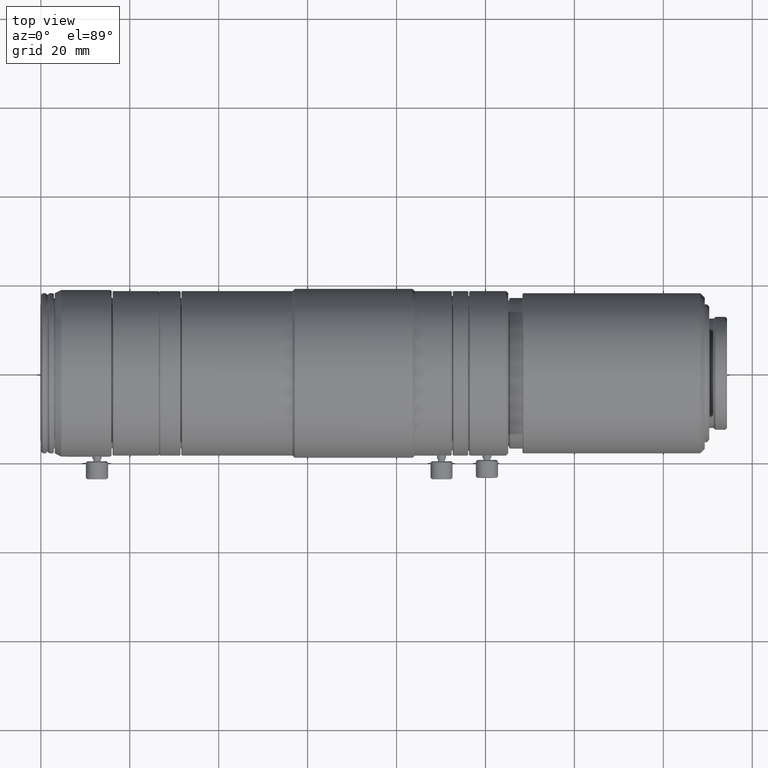
[diagram: clean part render]
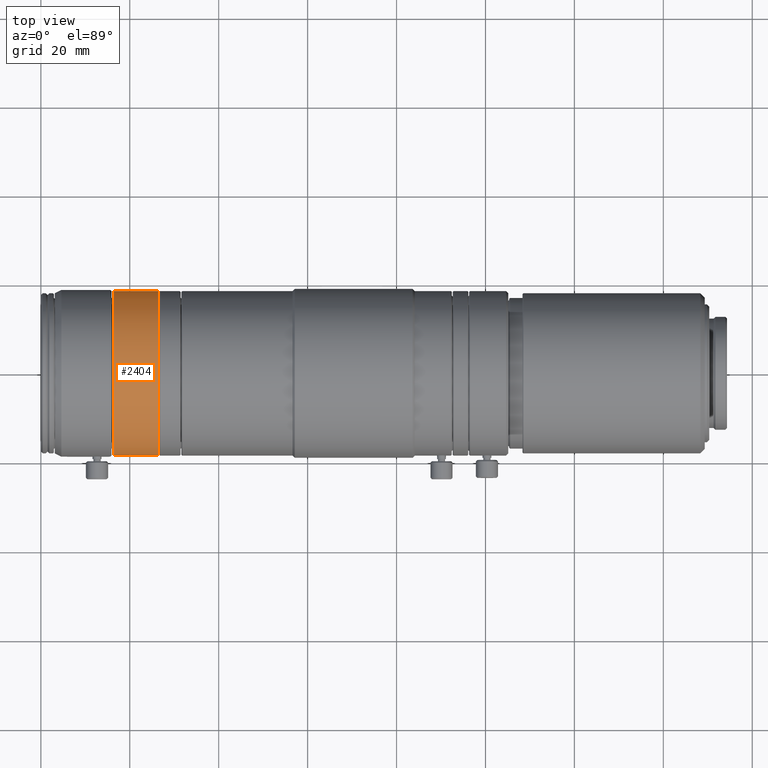
[diagram: same view with one face highlighted and labeled with its STEP entity id]
A machine part, top view. The second image highlights one B-rep face of the part: STEP entity #2404.
In plain terms, the highlighted cylindrical surface (partial cylindrical patch) has radius 18.5 mm, axis along (-1, -0, -0).
Its self-contained STEP definition (entity closure, byte-faithful):
#300 = CARTESIAN_POINT ( 'NONE',  ( 16.33152598471084700, 18.50000000000013900, 2.265596578422615200E-015 ) ) ;
#519 = ORIENTED_EDGE ( 'NONE', *, *, #3311, .F. ) ;
#537 = CYLINDRICAL_SURFACE ( 'NONE', #692, 18.50000000000008500 ) ;
#630 = LINE ( 'NONE', #2325, #6427 ) ;
#684 = EDGE_CURVE ( 'NONE', #4138, #1871, #6795, .T. ) ;
#692 = AXIS2_PLACEMENT_3D ( 'NONE', #6818, #4911, #1008 ) ;
#1008 = DIRECTION ( 'NONE',  ( 4.594672990425035500E-015, -1.000000000000000000, 0.0000000000000000000 ) ) ;
#1021 = EDGE_CURVE ( 'NONE', #3057, #4138, #4693, .T. ) ;
#1223 = DIRECTION ( 'NONE',  ( -1.000000000000000000, -4.558507189758049000E-015, -0.0000000000000000000 ) ) ;
#1329 = VERTEX_POINT ( 'NONE', #3041 ) ;
#1692 = EDGE_LOOP ( 'NONE', ( #2394, #6956, #4415, #519 ) ) ;
#1871 = VERTEX_POINT ( 'NONE', #300 ) ;
#2235 = CARTESIAN_POINT ( 'NONE',  ( 26.43097463334740400, -18.49999999999998600, 0.0000000000000000000 ) ) ;
#2325 = CARTESIAN_POINT ( 'NONE',  ( 8.060974633347420600, -18.50000000000009600, 0.0000000000000000000 ) ) ;
#2394 = ORIENTED_EDGE ( 'NONE', *, *, #1021, .T. ) ;
#2404 = ADVANCED_FACE ( 'NONE', ( #6504 ), #537, .T. ) ;
#2487 = VECTOR ( 'NONE', #3556, 1000.000000000000000 ) ;
#2602 = CARTESIAN_POINT ( 'NONE',  ( 16.33152598471092900, 2.830191111603940100E-014, 0.0000000000000000000 ) ) ;
#2603 = CARTESIAN_POINT ( 'NONE',  ( 8.060974633347250100, 18.50000000000007500, 2.265596578422613700E-015 ) ) ;
#2991 = AXIS2_PLACEMENT_3D ( 'NONE', #7130, #4492, #3193 ) ;
#3041 = CARTESIAN_POINT ( 'NONE',  ( 16.33152598471101400, -18.50000000000007800, 0.0000000000000000000 ) ) ;
#3057 = VERTEX_POINT ( 'NONE', #2235 ) ;
#3170 = DIRECTION ( 'NONE',  ( 4.500904153885743700E-015, -1.000000000000000000, 0.0000000000000000000 ) ) ;
#3193 = DIRECTION ( 'NONE',  ( 4.500904153885754700E-015, -1.000000000000000000, 0.0000000000000000000 ) ) ;
#3311 = EDGE_CURVE ( 'NONE', #3057, #1329, #630, .T. ) ;
#3556 = DIRECTION ( 'NONE',  ( -1.000000000000000000, -4.558507189758049000E-015, -0.0000000000000000000 ) ) ;
#4138 = VERTEX_POINT ( 'NONE', #4865 ) ;
#4415 = ORIENTED_EDGE ( 'NONE', *, *, #6696, .F. ) ;
#4492 = DIRECTION ( 'NONE',  ( -1.000000000000000000, -4.558507189758049000E-015, -0.0000000000000000000 ) ) ;
#4693 = CIRCLE ( 'NONE', #2991, 18.50000000000006000 ) ;
#4836 = AXIS2_PLACEMENT_3D ( 'NONE', #2602, #6548, #3170 ) ;
#4865 = CARTESIAN_POINT ( 'NONE',  ( 26.43097463334724000, 18.50000000000013900, 2.265596578422610900E-015 ) ) ;
#4911 = DIRECTION ( 'NONE',  ( -1.000000000000000000, -4.558507189758049000E-015, -0.0000000000000000000 ) ) ;
#5315 = CIRCLE ( 'NONE', #4836, 18.50000000000010700 ) ;
#6427 = VECTOR ( 'NONE', #1223, 1000.000000000000000 ) ;
#6504 = FACE_OUTER_BOUND ( 'NONE', #1692, .T. ) ;
#6548 = DIRECTION ( 'NONE',  ( -1.000000000000000000, -4.558507189758049000E-015, -0.0000000000000000000 ) ) ;
#6696 = EDGE_CURVE ( 'NONE', #1329, #1871, #5315, .T. ) ;
#6795 = LINE ( 'NONE', #2603, #2487 ) ;
#6818 = CARTESIAN_POINT ( 'NONE',  ( 8.060974633347335300, -9.399456682414691900E-015, 0.0000000000000000000 ) ) ;
#6956 = ORIENTED_EDGE ( 'NONE', *, *, #684, .T. ) ;
#7130 = CARTESIAN_POINT ( 'NONE',  ( 26.43097463334732200, 7.434032039344061000E-014, 0.0000000000000000000 ) ) ;